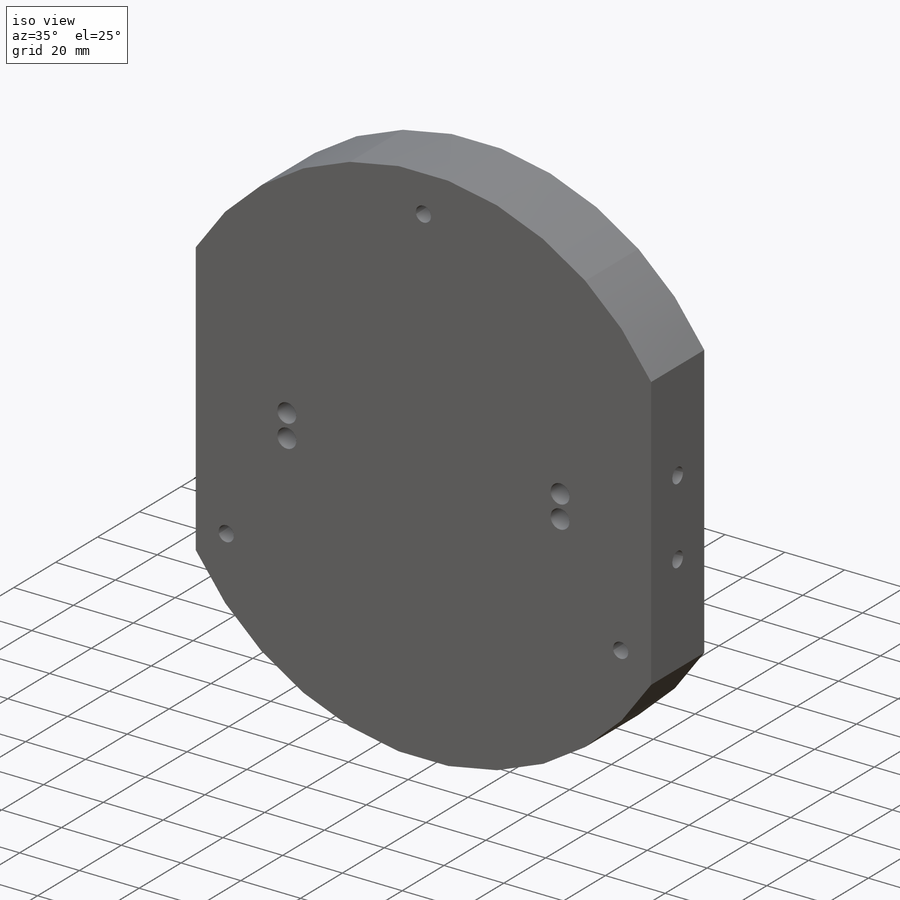
[diagram: iso view]
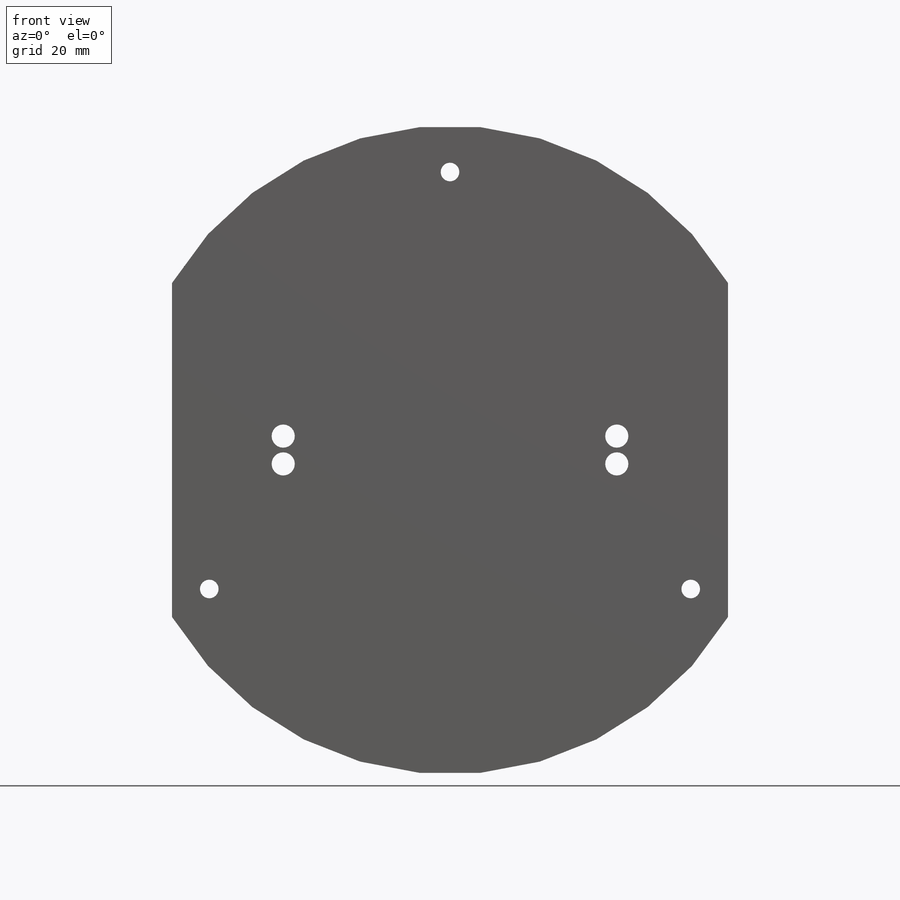
[diagram: front view]
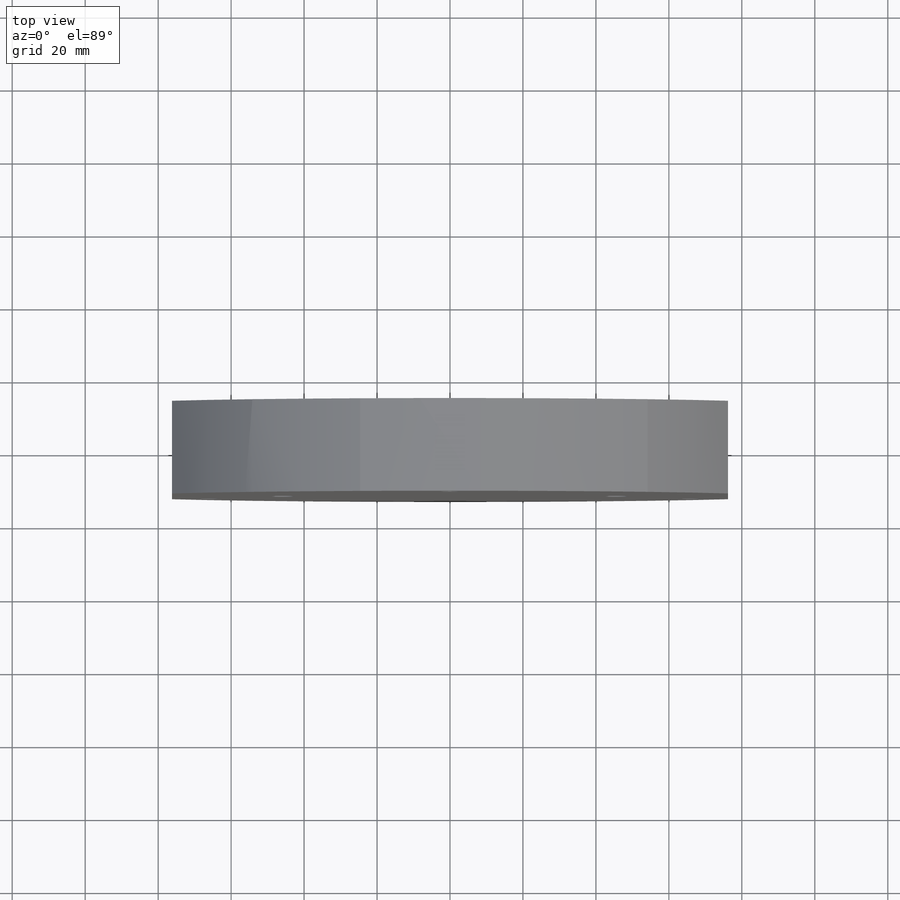
[diagram: top view]
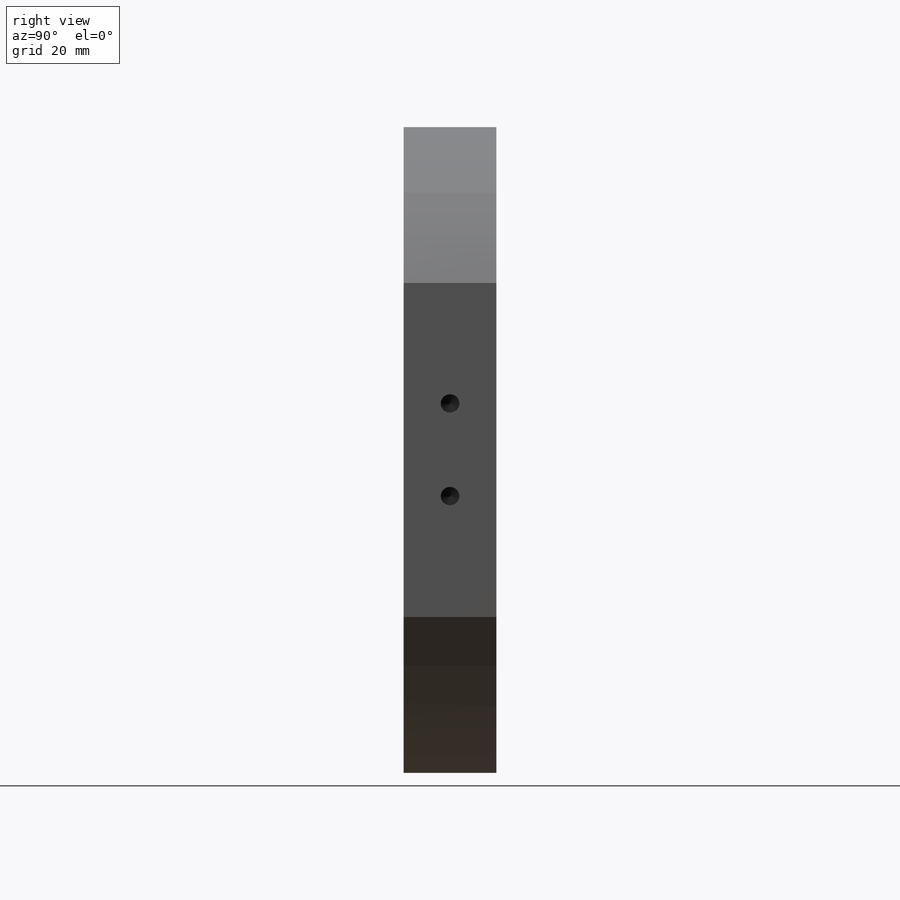
[diagram: right view]
SOLIDWORKS PART (.sldprt)
format: sldprt  version: not decoded by parser v0  size: 404,992 bytes
history: native  units: mm
features: sketch x14, hole x4, thread x4, extrude x3, cut_extrude x3, material x1, pattern_circular x1, pattern_linear x1 + 1 further entry (+13 scaffold rows collapsed)
feature tree (45):
  scaffold x13  (default folders/planes/origin — collapsed)
  material  "6061 Alloy"
  "Origin"  ID=-1
  sketch  "Sketch1"  dims[D1=177.8mm D2=177.8mm]
  extrude  "Extrude1"  Depth=12.7mm
  hole  "#10 Clearance Hole1"  Diameter=5.1054mm Depth=12.7mm
  sketch  "Sketch3"  dims[D1=76.2mm]
  sketch  "Sketch2"  dims[hole-wizard template sketch: 60 standard entries collapsed; hole parameters kept: c18.Thru Hole Depth=12.7mm]
  pattern_circular  "CirPattern1"  Count=3 Angle=120deg
  sketch  "Sketch5"  dims[D1=31.75mm]
  cut_extrude  "Extrude2"  Depth=1.5875mm
  sketch  "Sketch8"  dims[D1=177.8mm D2=304.8mm]
  cut_extrude  "Extrude3"  [1 undecoded]
  sketch  "Sketch9"  dims[D1=177.8mm D2=152.4mm D3=254.0mm D4=254.0mm]
  cut_extrude  "Extrude4"  [1 undecoded]
  sketch  "Sketch10"  dims[D1=38.1mm]
  extrude  "Extrude5"  Depth=12.7mm
  hole  "1/4 (0.25) Diameter Hole1"  Diameter=6.35mm Depth=25.4mm
  sketch  "Sketch12"  dims[D1=45.72mm D2=3.81mm]
  sketch  "Sketch11"  dims[hole-wizard template sketch: 60 standard entries collapsed; hole parameters kept: c18.Thru Hole Depth=25.4mm]
  pattern_linear  "LPattern1"  Count1=2 Count2=2 Spacing1=7.62mm Spacing2=91.44mm
  hole  "1/4-20 Tapped Hole1"  Diameter=5.1054mm Depth=19.05mm
  sketch  "Sketch14"  dims[D1=25.4mm D2=12.7mm]
  sketch  "Sketch13"  dims[hole-wizard template sketch: 50 standard entries collapsed; hole parameters above]
  thread  "Hole Thread1"  Diameter=15.24mm  [1 undecoded]
  thread  "Hole Thread4"  Diameter=15.24mm  [1 undecoded]
  hole  "1/4-20 Tapped Hole2"  Diameter=5.1054mm Depth=19.05mm
  sketch  "Sketch16"  dims[D1=25.4mm D2=12.7mm]
  sketch  "Sketch15"  dims[hole-wizard template sketch: 50 standard entries collapsed; hole parameters above]
  thread  "Hole Thread2"  Diameter=15.24mm  [1 undecoded]
  thread  "Hole Thread3"  Diameter=15.24mm  [1 undecoded]
  sketch  "Sketch17"  dims[c1.D1=2.54mm c1.D2=2.54mm c2.D1=0.0mm c2.D2=0.0mm]
  extrude  "Extrude6"  [1 undecoded]
decode coverage: 27 of 30 modeling features carry decoded parameters; 1 rows unclassified (native names shown)
note: ~ marks probable driven/reference dimensions
note: 7 parameter values undecoded
summary: no parameter record found for 3 features; Diameter pulled from absorbed wizard sketch
note: suppression state not decoded; provenance and decode notes live in map.json
